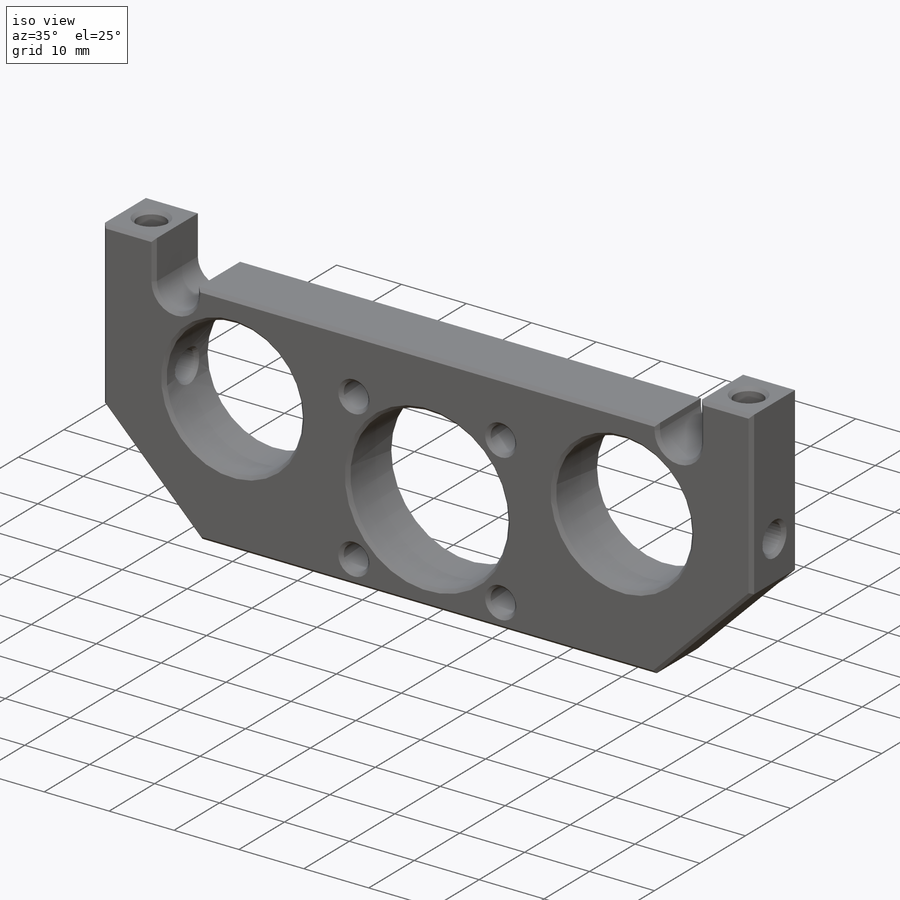
[diagram: iso view]
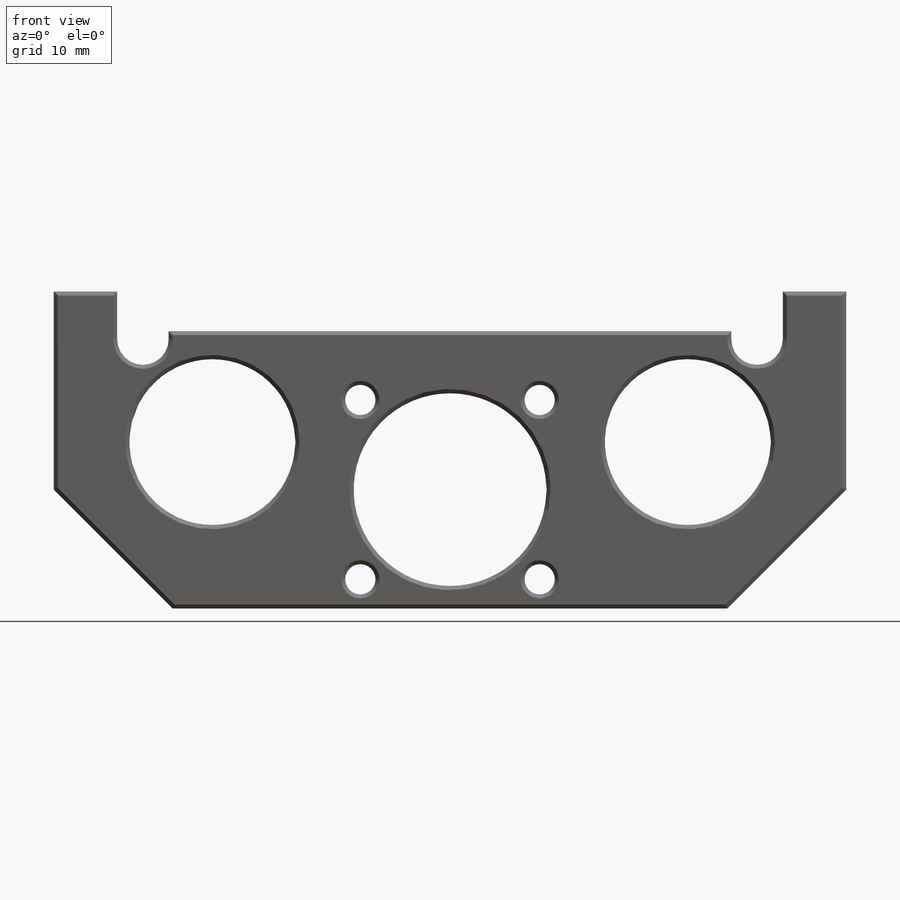
[diagram: front view]
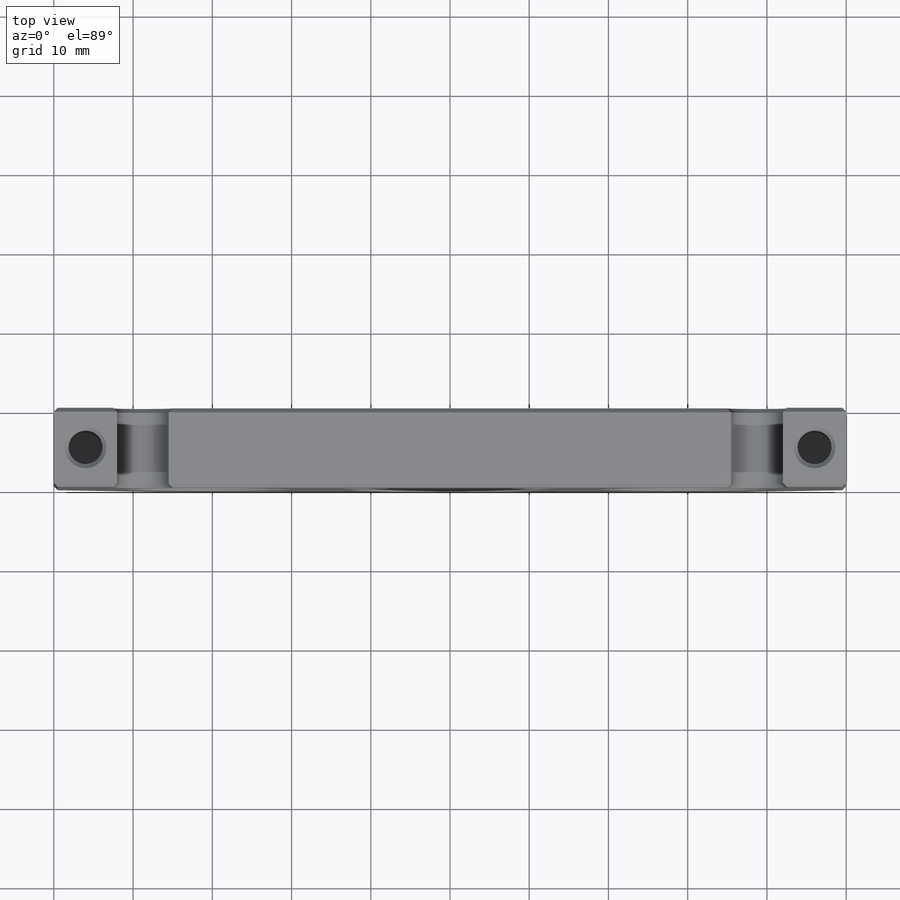
[diagram: top view]
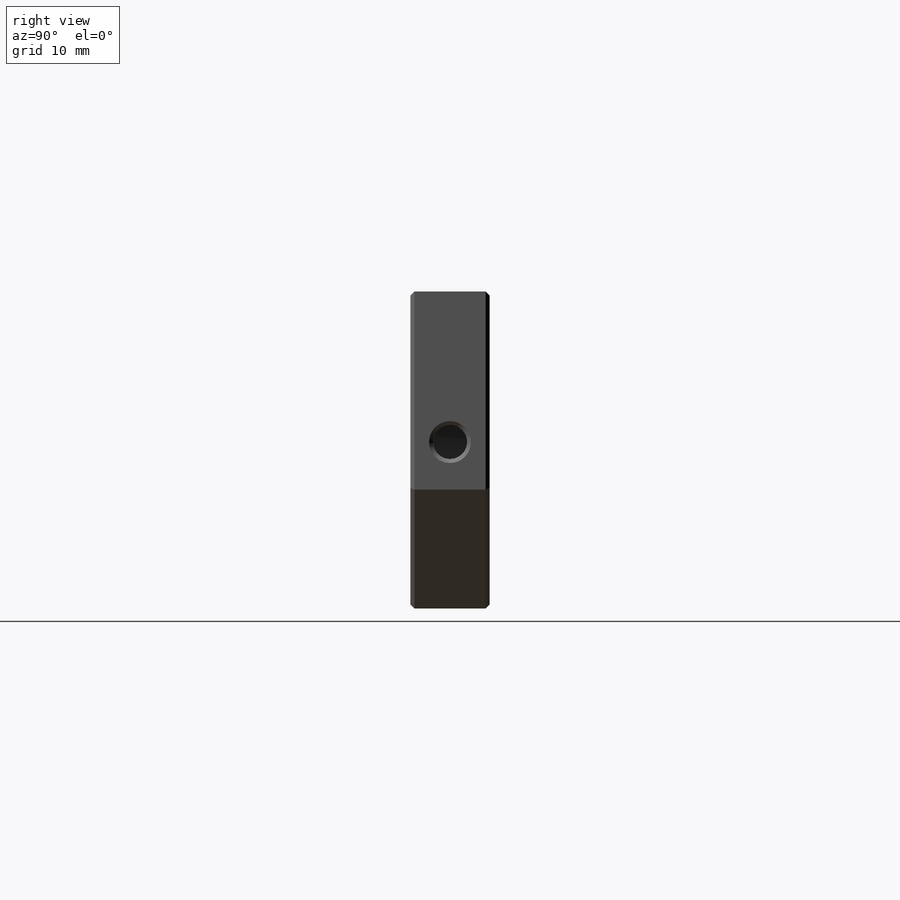
[diagram: right view]
SOLIDWORKS PART (.sldprt)
format: sldprt  version: not decoded by parser v0  size: 364,032 bytes
history: native  units: mm
features: sketch x4, cut_extrude x3, chamfer x2, material x1, extrude x1 (+12 scaffold rows collapsed)
feature tree (23):
  scaffold x12  (default folders/planes/origin — collapsed)
  material  "6061 Alloy"
  sketch  "Sketch1"  dims[c1.D2=24.4mm c1.D3=21.0mm c1.D4=21.0mm c1.D6=32.0mm c1.D1=15.0mm c2.D4=60.0mm c2.D5=100.0mm c2.D7=6.0mm c2.D9=6.5mm c2.D10=8.0mm c2.D11=20.0mm c2.D12=1.0mm c2.D13=5.0mm c2.D8=8.0]
  extrude  "Boss-Extrude1"  Depth=10mm
  sketch  "Sketch2"  dims[D1=4.3mm]
  cut_extrude  "Cut-Extrude1"  Depth=15mm
  chamfer  "Chamfer1"  Distance=15mm Angle=45deg
  sketch  "Sketch3"  dims[D1=4.3mm D2=19.0mm]
  cut_extrude  "Cut-Extrude2"  Depth=20mm
  sketch  "Sketch4"
  cut_extrude  "Cut-Extrude3"  Depth=20mm
  chamfer  "Chamfer2"  Distance=0.5mm Angle=45deg
decode coverage: 9 of 10 modeling features carry decoded parameters
note: suppression state not decoded; provenance and decode notes live in map.json
